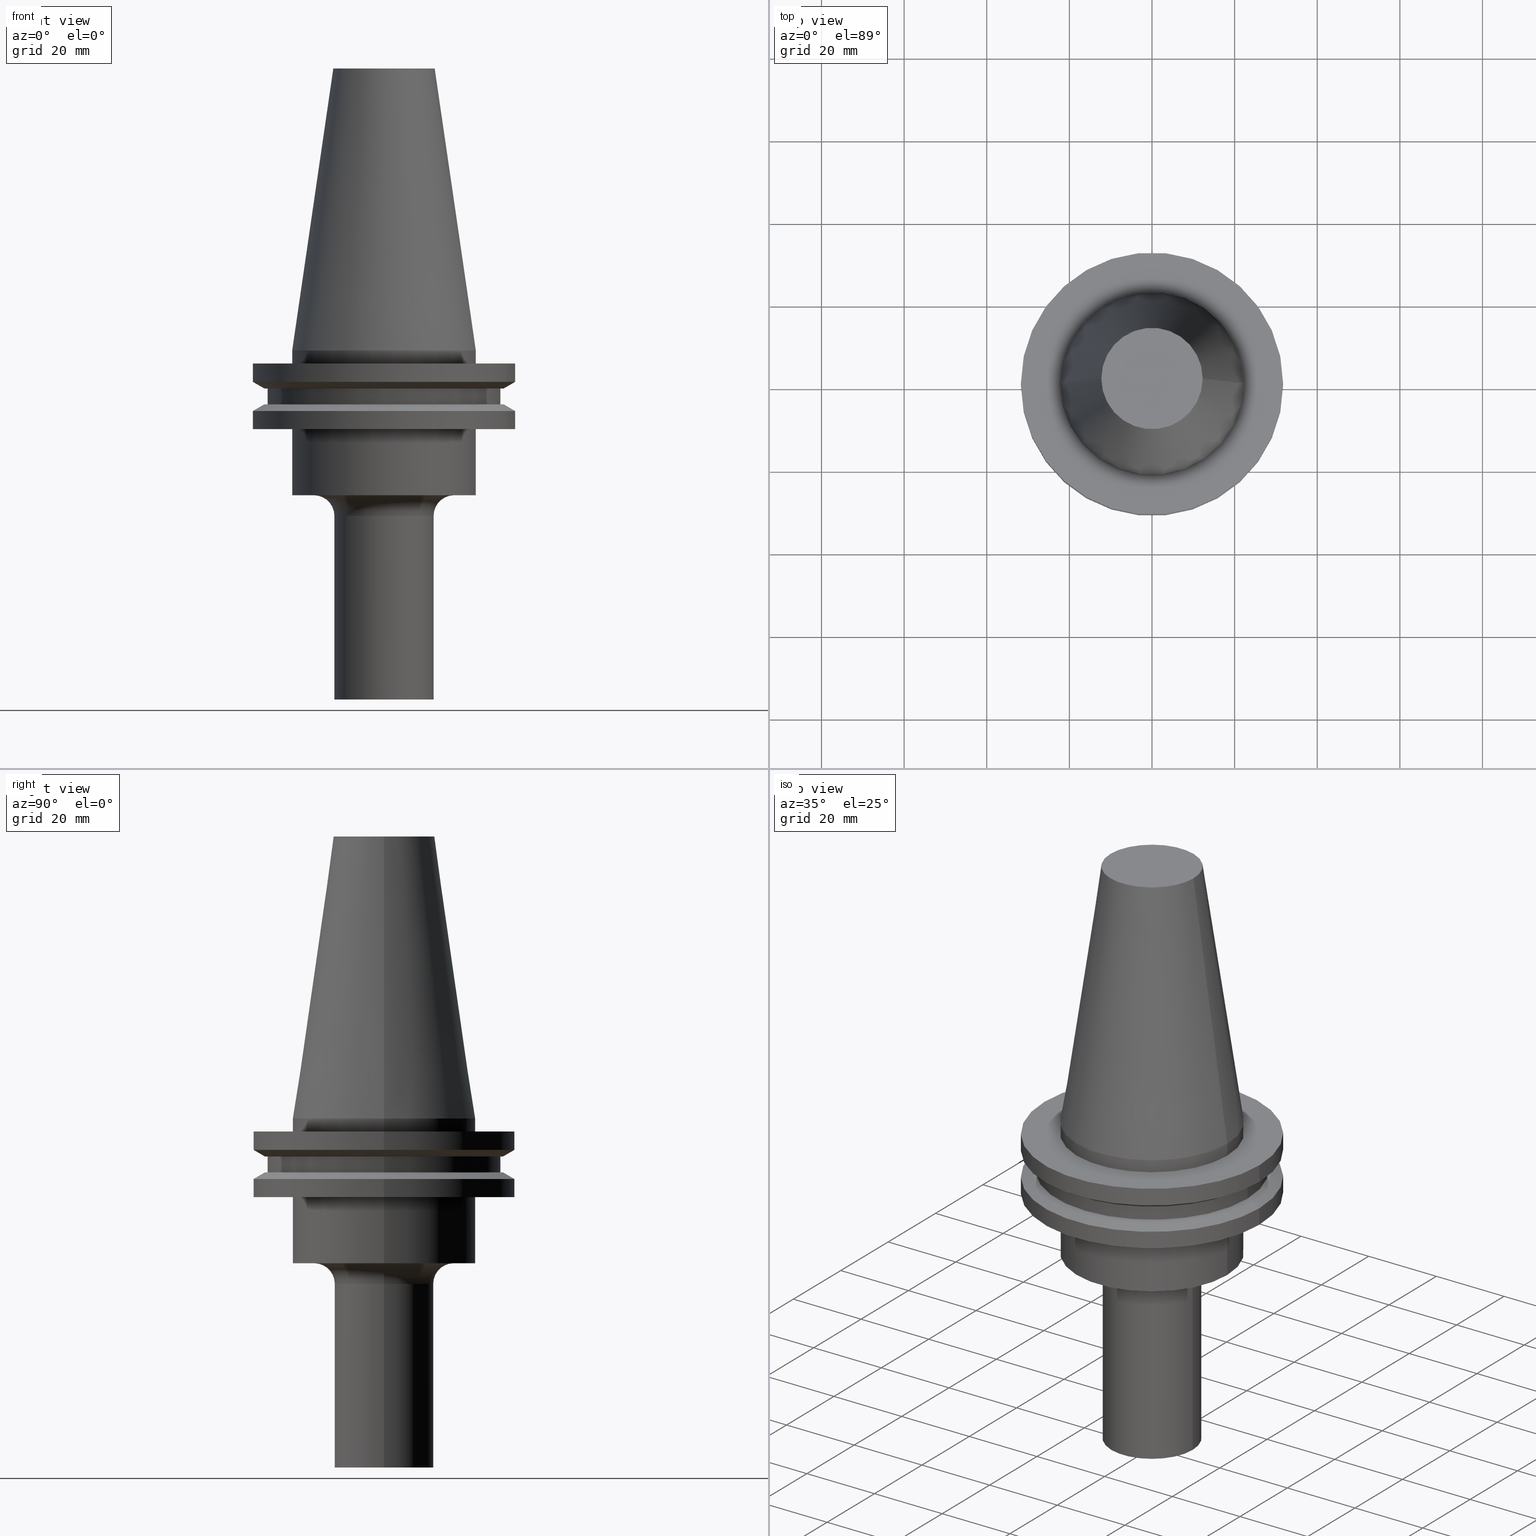
[diagram: canonical four-view strip — front | top / right | iso, engineering-drawing reading convention]
A machine part, canonical four-view strip (front | top / right | iso — engineering-drawing reading convention). The complete STEP part file that produces these views, byte-faithful:
ISO-10303-21;
HEADER;
FILE_DESCRIPTION (( 'STEP AP203' ),
    '1' );
FILE_NAME ('11_326_421.stp',
    '2022-03-07T22:03:03',
    ( '' ),
    ( '' ),
    'SwSTEP 2.0',
    'SolidWorks 2021',
    '' );
FILE_SCHEMA (( 'CONFIG_CONTROL_DESIGN' ));
ENDSEC;

DATA;
#1 = EDGE_LOOP ( 'NONE', ( #113, #151, #72, #214 ) ) ;
#2 = DATE_TIME_ROLE ( 'creation_date' ) ;
#3 = ADVANCED_FACE ( 'NONE', ( #420 ), #192, .T. ) ;
#4 = DIRECTION ( 'NONE',  ( 1.000000000000000000, 0.000000000000000000, 0.000000000000000000 ) ) ;
#5 = AXIS2_PLACEMENT_3D ( 'NONE', #131, #666, #489 ) ;
#6 = EDGE_CURVE ( 'NONE', #467, #290, #358, .T. ) ;
#7 = CARTESIAN_POINT ( 'NONE',  ( 0.000000000000000000, 0.000000000000000000, 0.000000000000000000 ) ) ;
#8 = ORIENTED_EDGE ( 'NONE', *, *, #324, .T. ) ;
#9 = CARTESIAN_POINT ( 'NONE',  ( 0.000000000000000000, 0.000000000000000000, 68.25000000000000000 ) ) ;
#10 = EDGE_LOOP ( 'NONE', ( #356, #107, #241, #227 ) ) ;
#11 = EDGE_CURVE ( 'NONE', #377, #290, #146, .T. ) ;
#12 = PERSON_AND_ORGANIZATION ( #169, #368 ) ;
#13 = VERTEX_POINT ( 'NONE', #388 ) ;
#14 = DIRECTION ( 'NONE',  ( 1.000000000000000000, 0.000000000000000000, 0.000000000000000000 ) ) ;
#15 = SHAPE_DEFINITION_REPRESENTATION ( #189, #515 ) ;
#16 = CARTESIAN_POINT ( 'NONE',  ( 12.00000000000000000, 0.000000000000000000, -84.50000000000000000 ) ) ;
#17 = ORIENTED_EDGE ( 'NONE', *, *, #58, .T. ) ;
#18 = AXIS2_PLACEMENT_3D ( 'NONE', #76, #97, #217 ) ;
#19 = ORIENTED_EDGE ( 'NONE', *, *, #71, .F. ) ;
#20 = CARTESIAN_POINT ( 'NONE',  ( -12.27178102086201150, 0.000000000000000000, 68.25000000000000000 ) ) ;
#21 = CIRCLE ( 'NONE', #63, 12.00000000000000000 ) ;
#22 = CARTESIAN_POINT ( 'NONE',  ( 31.75000000000000000, 0.000000000000000000, -3.174999999999997158 ) ) ;
#23 = FACE_OUTER_BOUND ( 'NONE', #10, .T. ) ;
#24 = EDGE_LOOP ( 'NONE', ( #553, #49, #118, #252 ) ) ;
#25 = DIRECTION ( 'NONE',  ( -0.000000000000000000, -0.000000000000000000, 1.000000000000000000 ) ) ;
#26 = CARTESIAN_POINT ( 'NONE',  ( 0.000000000000000000, 12.00000000000000000, -84.50000000000000000 ) ) ;
#27 = LINE ( 'NONE', #568, #726 ) ;
#28 = CARTESIAN_POINT ( 'NONE',  ( -22.22500000000000142, 2.721777511104992849E-15, -19.04999999999999716 ) ) ;
#29 = CARTESIAN_POINT ( 'NONE',  ( 0.000000000000000000, 0.000000000000000000, 68.25000000000000000 ) ) ;
#30 = CARTESIAN_POINT ( 'NONE',  ( 0.000000000000000000, 0.000000000000000000, 68.25000000000000000 ) ) ;
#31 = ORIENTED_EDGE ( 'NONE', *, *, #45, .T. ) ;
#32 = DIRECTION ( 'NONE',  ( -0.000000000000000000, -0.000000000000000000, 1.000000000000000000 ) ) ;
#33 = AXIS2_PLACEMENT_3D ( 'NONE', #326, #673, #262 ) ;
#34 = CARTESIAN_POINT ( 'NONE',  ( 0.000000000000000000, 0.000000000000000000, -9.205000000000005400 ) ) ;
#35 = DIRECTION ( 'NONE',  ( 1.000000000000000000, 0.000000000000000000, 0.000000000000000000 ) ) ;
#36 = AXIS2_PLACEMENT_3D ( 'NONE', #330, #625, #571 ) ;
#37 = EDGE_CURVE ( 'NONE', #179, #419, #411, .T. ) ;
#38 = AXIS2_PLACEMENT_3D ( 'NONE', #228, #55, #530 ) ;
#39 = DIRECTION ( 'NONE',  ( -1.000000000000000000, 0.000000000000000000, -0.000000000000000000 ) ) ;
#40 = LOCAL_TIME ( 16, 3, 3.000000000000000000, #487 ) ;
#41 = ORIENTED_EDGE ( 'NONE', *, *, #501, .T. ) ;
#42 = FACE_BOUND ( 'NONE', #576, .T. ) ;
#43 = DIRECTION ( 'NONE',  ( 1.000000000000000000, 0.000000000000000000, 0.000000000000000000 ) ) ;
#44 = DIRECTION ( 'NONE',  ( -0.000000000000000000, -0.000000000000000000, 1.000000000000000000 ) ) ;
#45 = EDGE_CURVE ( 'NONE', #529, #347, #27, .T. ) ;
#46 = VERTEX_POINT ( 'NONE', #453 ) ;
#47 = CYLINDRICAL_SURFACE ( 'NONE', #731, 22.22500000000000142 ) ;
#48 = CARTESIAN_POINT ( 'NONE',  ( -31.75000000000000000, 0.000000000000000000, -14.65472339340266572 ) ) ;
#49 = ORIENTED_EDGE ( 'NONE', *, *, #573, .F. ) ;
#50 = CYLINDRICAL_SURFACE ( 'NONE', #361, 22.22500000000000142 ) ;
#51 = DIRECTION ( 'NONE',  ( 1.000000000000000000, 0.000000000000000000, 0.000000000000000000 ) ) ;
#52 = AXIS2_PLACEMENT_3D ( 'NONE', #162, #103, #278 ) ;
#53 = AXIS2_PLACEMENT_3D ( 'NONE', #523, #378, #288 ) ;
#54 = EDGE_LOOP ( 'NONE', ( #73, #503 ) ) ;
#55 = DIRECTION ( 'NONE',  ( -0.000000000000000000, -0.000000000000000000, 1.000000000000000000 ) ) ;
#56 = FACE_OUTER_BOUND ( 'NONE', #551, .T. ) ;
#57 = DIRECTION ( 'NONE',  ( 1.000000000000000000, 0.000000000000000000, 0.000000000000000000 ) ) ;
#58 = EDGE_CURVE ( 'NONE', #609, #311, #340, .T. ) ;
#59 = ORIENTED_EDGE ( 'NONE', *, *, #412, .F. ) ;
#60 = ORIENTED_EDGE ( 'NONE', *, *, #365, .T. ) ;
#61 = EDGE_CURVE ( 'NONE', #522, #300, #635, .T. ) ;
#62 = VECTOR ( 'NONE', #755, 1000.000000000000000 ) ;
#63 = AXIS2_PLACEMENT_3D ( 'NONE', #693, #106, #513 ) ;
#64 = ORIENTED_EDGE ( 'NONE', *, *, #235, .F. ) ;
#65 = PRODUCT ( '11_326_421', '11_326_421', '', ( #185 ) ) ;
#66 = AXIS2_PLACEMENT_3D ( 'NONE', #502, #690, #521 ) ;
#67 = APPROVAL_STATUS ( 'not_yet_approved' ) ;
#68 = AXIS2_PLACEMENT_3D ( 'NONE', #642, #461, #402 ) ;
#69 = AXIS2_PLACEMENT_3D ( 'NONE', #342, #85, #577 ) ;
#70 = LOCAL_TIME ( 16, 3, 3.000000000000000000, #427 ) ;
#71 = EDGE_CURVE ( 'NONE', #463, #377, #496, .T. ) ;
#72 = ORIENTED_EDGE ( 'NONE', *, *, #532, .F. ) ;
#73 = ORIENTED_EDGE ( 'NONE', *, *, #735, .T. ) ;
#74 = CALENDAR_DATE ( 2022, 7, 3 ) ;
#75 = DIRECTION ( 'NONE',  ( -0.000000000000000000, -0.000000000000000000, 1.000000000000000000 ) ) ;
#76 = CARTESIAN_POINT ( 'NONE',  ( 0.000000000000000000, 0.000000000000000000, -3.174999999999997158 ) ) ;
#77 = DIRECTION ( 'NONE',  ( -0.000000000000000000, -0.000000000000000000, 1.000000000000000000 ) ) ;
#78 = DIRECTION ( 'NONE',  ( 1.000000000000000000, 0.000000000000000000, 0.000000000000000000 ) ) ;
#79 = ORIENTED_EDGE ( 'NONE', *, *, #235, .T. ) ;
#80 = CARTESIAN_POINT ( 'NONE',  ( -31.75000000000000000, 3.888253587292846476E-15, -7.605276606597335842 ) ) ;
#81 = CARTESIAN_POINT ( 'NONE',  ( -17.00000000000000000, 2.081899558550500280E-15, -40.04999999999999716 ) ) ;
#82 = DIRECTION ( 'NONE',  ( -1.000000000000000000, 0.000000000000000000, 0.000000000000000000 ) ) ;
#83 = ADVANCED_FACE ( 'NONE', ( #23 ), #682, .T. ) ;
#84 = EDGE_CURVE ( 'NONE', #596, #304, #543, .T. ) ;
#85 = DIRECTION ( 'NONE',  ( -0.000000000000000000, -0.000000000000000000, 1.000000000000000000 ) ) ;
#86 = CYLINDRICAL_SURFACE ( 'NONE', #537, 31.75000000000000000 ) ;
#87 = DIRECTION ( 'NONE',  ( 1.000000000000000000, 0.000000000000000000, 0.000000000000000000 ) ) ;
#88 = ADVANCED_FACE ( 'NONE', ( #678, #204 ), #516, .F. ) ;
#89 = ORIENTED_EDGE ( 'NONE', *, *, #125, .T. ) ;
#90 = DIRECTION ( 'NONE',  ( -0.000000000000000000, -0.000000000000000000, 1.000000000000000000 ) ) ;
#91 = DIRECTION ( 'NONE',  ( -0.000000000000000000, -0.000000000000000000, 1.000000000000000000 ) ) ;
#92 = DIRECTION ( 'NONE',  ( 0.000000000000000000, 0.000000000000000000, -1.000000000000000000 ) ) ;
#93 = ORIENTED_EDGE ( 'NONE', *, *, #45, .F. ) ;
#94 = LINE ( 'NONE', #205, #302 ) ;
#95 = DIRECTION ( 'NONE',  ( -0.000000000000000000, -0.000000000000000000, 1.000000000000000000 ) ) ;
#96 = AXIS2_PLACEMENT_3D ( 'NONE', #265, #325, #452 ) ;
#97 = DIRECTION ( 'NONE',  ( -0.000000000000000000, -0.000000000000000000, 1.000000000000000000 ) ) ;
#98 = EDGE_CURVE ( 'NONE', #569, #13, #774, .T. ) ;
#99 =( GEOMETRIC_REPRESENTATION_CONTEXT ( 3 ) GLOBAL_UNCERTAINTY_ASSIGNED_CONTEXT ( ( #261 ) ) GLOBAL_UNIT_ASSIGNED_CONTEXT ( ( #662, #721, #188 ) ) REPRESENTATION_CONTEXT ( 'NONE', 'WORKASPACE' ) );
#100 = ORIENTED_EDGE ( 'NONE', *, *, #424, .F. ) ;
#101 = CARTESIAN_POINT ( 'NONE',  ( 31.75000000000000000, 0.000000000000000000, -7.605276606597335842 ) ) ;
#102 = CARTESIAN_POINT ( 'NONE',  ( 0.000000000000000000, 0.000000000000000000, -13.05499999999999794 ) ) ;
#103 = DIRECTION ( 'NONE',  ( -0.000000000000000000, -0.000000000000000000, 1.000000000000000000 ) ) ;
#104 = ORIENTED_EDGE ( 'NONE', *, *, #58, .F. ) ;
#105 = FACE_OUTER_BOUND ( 'NONE', #518, .T. ) ;
#106 = DIRECTION ( 'NONE',  ( -0.000000000000000000, -0.000000000000000000, 1.000000000000000000 ) ) ;
#107 = ORIENTED_EDGE ( 'NONE', *, *, #735, .F. ) ;
#108 = ADVANCED_FACE ( 'NONE', ( #618 ), #136, .T. ) ;
#109 = CYLINDRICAL_SURFACE ( 'NONE', #246, 28.17999999999999972 ) ;
#110 = DIRECTION ( 'NONE',  ( -0.000000000000000000, -0.000000000000000000, 1.000000000000000000 ) ) ;
#111 = CIRCLE ( 'NONE', #175, 28.17999999999999972 ) ;
#112 = CIRCLE ( 'NONE', #538, 22.22500000000000142 ) ;
#113 = ORIENTED_EDGE ( 'NONE', *, *, #117, .T. ) ;
#114 = DIRECTION ( 'NONE',  ( -0.000000000000000000, -0.000000000000000000, 1.000000000000000000 ) ) ;
#115 = CARTESIAN_POINT ( 'NONE',  ( 12.00000000000000000, 0.000000000000000000, -40.04999999999999716 ) ) ;
#116 = ORIENTED_EDGE ( 'NONE', *, *, #629, .T. ) ;
#117 = EDGE_CURVE ( 'NONE', #377, #347, #158, .T. ) ;
#118 = ORIENTED_EDGE ( 'NONE', *, *, #517, .T. ) ;
#119 = EDGE_CURVE ( 'NONE', #198, #609, #111, .T. ) ;
#120 = VECTOR ( 'NONE', #472, 1000.000000000000000 ) ;
#121 = ORIENTED_EDGE ( 'NONE', *, *, #365, .F. ) ;
#122 = DATE_AND_TIME ( #481, #129 ) ;
#123 = CARTESIAN_POINT ( 'NONE',  ( 17.00000000000000000, 0.000000000000000000, -35.04999999999999716 ) ) ;
#124 = PERSON_AND_ORGANIZATION_ROLE ( 'design_owner' ) ;
#125 = EDGE_CURVE ( 'NONE', #222, #722, #631, .T. ) ;
#126 = APPLICATION_PROTOCOL_DEFINITION ( 'international standard', 'config_control_design', 1994, #279 ) ;
#127 = AXIS2_PLACEMENT_3D ( 'NONE', #81, #514, #741 ) ;
#128 = VECTOR ( 'NONE', #512, 999.9999999999998863 ) ;
#129 = LOCAL_TIME ( 16, 3, 3.000000000000000000, #661 ) ;
#130 = COORDINATED_UNIVERSAL_TIME_OFFSET ( 6, 0, .BEHIND. ) ;
#131 = CARTESIAN_POINT ( 'NONE',  ( 0.000000000000000000, 0.000000000000000000, -19.04999999999999716 ) ) ;
#132 = EDGE_LOOP ( 'NONE', ( #316, #687, #657, #121 ) ) ;
#133 = EDGE_CURVE ( 'NONE', #419, #569, #281, .T. ) ;
#134 = SECURITY_CLASSIFICATION_LEVEL ( 'unclassified' ) ;
#135 = DIRECTION ( 'NONE',  ( 0.1443082272672999711, 1.767266086135276757E-17, -0.9895327864921755756 ) ) ;
#136 = CYLINDRICAL_SURFACE ( 'NONE', #599, 31.75000000000000000 ) ;
#137 = VERTEX_POINT ( 'NONE', #694 ) ;
#138 = DIRECTION ( 'NONE',  ( 1.000000000000000000, 0.000000000000000000, 0.000000000000000000 ) ) ;
#139 = FACE_BOUND ( 'NONE', #669, .T. ) ;
#140 = DIRECTION ( 'NONE',  ( 1.000000000000000000, 0.000000000000000000, 0.000000000000000000 ) ) ;
#141 = CC_DESIGN_DATE_AND_TIME_ASSIGNMENT ( #193, #2, ( #258 ) ) ;
#142 = VERTEX_POINT ( 'NONE', #559 ) ;
#143 = DIRECTION ( 'NONE',  ( -0.000000000000000000, -0.000000000000000000, 1.000000000000000000 ) ) ;
#144 = AXIS2_PLACEMENT_3D ( 'NONE', #570, #32, #762 ) ;
#145 = FACE_OUTER_BOUND ( 'NONE', #486, .T. ) ;
#146 = LINE ( 'NONE', #684, #244 ) ;
#147 = ORIENTED_EDGE ( 'NONE', *, *, #203, .T. ) ;
#148 = LINE ( 'NONE', #633, #660 ) ;
#149 = PLANE ( 'NONE',  #574 ) ;
#150 = DIRECTION ( 'NONE',  ( -0.000000000000000000, -0.000000000000000000, 1.000000000000000000 ) ) ;
#151 = ORIENTED_EDGE ( 'NONE', *, *, #403, .T. ) ;
#152 = FACE_OUTER_BOUND ( 'NONE', #647, .T. ) ;
#153 = CYLINDRICAL_SURFACE ( 'NONE', #464, 22.22500000000000142 ) ;
#154 = EDGE_CURVE ( 'NONE', #696, #137, #272, .T. ) ;
#155 = CARTESIAN_POINT ( 'NONE',  ( 0.000000000000000000, 0.000000000000000000, -14.65472339340266572 ) ) ;
#156 = EDGE_LOOP ( 'NONE', ( #344, #327, #263, #373 ) ) ;
#157 = CARTESIAN_POINT ( 'NONE',  ( 22.22500000000000142, 0.000000000000000000, 68.25000000000000000 ) ) ;
#158 = CIRCLE ( 'NONE', #421, 31.75000000000000000 ) ;
#159 = CARTESIAN_POINT ( 'NONE',  ( 0.000000000000000000, 22.22500000000000142, -35.04999999999999716 ) ) ;
#160 = AXIS2_PLACEMENT_3D ( 'NONE', #26, #254, #202 ) ;
#161 = CIRCLE ( 'NONE', #700, 4.999999999999997335 ) ;
#162 = CARTESIAN_POINT ( 'NONE',  ( 0.000000000000000000, 0.000000000000000000, -19.04999999999999716 ) ) ;
#163 = ORIENTED_EDGE ( 'NONE', *, *, #470, .F. ) ;
#164 = CARTESIAN_POINT ( 'NONE',  ( 28.17999999999999972, 0.000000000000000000, 68.25000000000000000 ) ) ;
#165 = CARTESIAN_POINT ( 'NONE',  ( 0.000000000000000000, 0.000000000000000000, -19.04999999999999716 ) ) ;
#166 = EDGE_CURVE ( 'NONE', #142, #137, #636, .T. ) ;
#167 = VERTEX_POINT ( 'NONE', #380 ) ;
#168 = CARTESIAN_POINT ( 'NONE',  ( 0.000000000000000000, 0.000000000000000000, 68.25000000000000000 ) ) ;
#169 = PERSON ( 'UNSPECIFIED', 'UNSPECIFIED', 'UNSPECIFIED', ('UNSPECIFIED'), ('UNSPECIFIED'), ('UNSPECIFIED') ) ;
#170 = DIRECTION ( 'NONE',  ( 1.000000000000000000, 0.000000000000000000, 0.000000000000000000 ) ) ;
#171 = CC_DESIGN_DATE_AND_TIME_ASSIGNMENT ( #253, #374, ( #238 ) ) ;
#172 = ORIENTED_EDGE ( 'NONE', *, *, #428, .F. ) ;
#173 = DIRECTION ( 'NONE',  ( 1.000000000000000000, 0.000000000000000000, 0.000000000000000000 ) ) ;
#174 = PLANE ( 'NONE',  #195 ) ;
#175 = AXIS2_PLACEMENT_3D ( 'NONE', #622, #457, #78 ) ;
#176 = CIRCLE ( 'NONE', #184, 12.27178102086201150 ) ;
#177 = EDGE_CURVE ( 'NONE', #609, #198, #360, .T. ) ;
#178 = ORIENTED_EDGE ( 'NONE', *, *, #6, .T. ) ;
#179 = VERTEX_POINT ( 'NONE', #699 ) ;
#180 = EDGE_CURVE ( 'NONE', #341, #142, #637, .T. ) ;
#181 = CC_DESIGN_PERSON_AND_ORGANIZATION_ASSIGNMENT ( #723, #190, ( #238 ) ) ;
#182 = ORIENTED_EDGE ( 'NONE', *, *, #71, .T. ) ;
#183 = AXIS2_PLACEMENT_3D ( 'NONE', #317, #379, #445 ) ;
#184 = AXIS2_PLACEMENT_3D ( 'NONE', #296, #405, #465 ) ;
#185 = MECHANICAL_CONTEXT ( 'NONE', #279, 'mechanical' ) ;
#186 = ADVANCED_FACE ( 'NONE', ( #211 ), #555, .F. ) ;
#187 = EDGE_CURVE ( 'NONE', #142, #341, #475, .T. ) ;
#188 =( NAMED_UNIT ( * ) SI_UNIT ( $, .STERADIAN. ) SOLID_ANGLE_UNIT ( ) );
#189 = PRODUCT_DEFINITION_SHAPE ( 'NONE', 'NONE',  #258 ) ;
#190 = PERSON_AND_ORGANIZATION_ROLE ( 'classification_officer' ) ;
#191 = ORIENTED_EDGE ( 'NONE', *, *, #705, .F. ) ;
#192 = CONICAL_SURFACE ( 'NONE', #586, 22.22500000000000142, 0.1448138465474119174 ) ;
#193 = DATE_AND_TIME ( #540, #40 ) ;
#194 = EDGE_CURVE ( 'NONE', #522, #167, #508, .T. ) ;
#195 = AXIS2_PLACEMENT_3D ( 'NONE', #159, #409, #582 ) ;
#196 = LOCAL_TIME ( 16, 3, 3.000000000000000000, #670 ) ;
#197 = CARTESIAN_POINT ( 'NONE',  ( 0.000000000000000000, 0.000000000000000000, -40.04999999999999716 ) ) ;
#198 = VERTEX_POINT ( 'NONE', #371 ) ;
#199 = EDGE_LOOP ( 'NONE', ( #104, #443, #397, #100 ) ) ;
#200 = ADVANCED_FACE ( 'NONE', ( #321 ), #314, .T. ) ;
#201 = CARTESIAN_POINT ( 'NONE',  ( 0.000000000000000000, 0.000000000000000000, -14.65472339340266572 ) ) ;
#202 = DIRECTION ( 'NONE',  ( 1.000000000000000000, 0.000000000000000000, 0.000000000000000000 ) ) ;
#203 = EDGE_CURVE ( 'NONE', #347, #377, #765, .T. ) ;
#204 = FACE_OUTER_BOUND ( 'NONE', #54, .T. ) ;
#205 = CARTESIAN_POINT ( 'NONE',  ( 31.75000000000000000, 0.000000000000000000, 68.25000000000000000 ) ) ;
#206 = DIRECTION ( 'NONE',  ( -0.000000000000000000, -0.000000000000000000, 1.000000000000000000 ) ) ;
#207 = CARTESIAN_POINT ( 'NONE',  ( 0.000000000000000000, 28.17999999999999972, -13.05499999999999794 ) ) ;
#208 = AXIS2_PLACEMENT_3D ( 'NONE', #29, #91, #681 ) ;
#209 = CYLINDRICAL_SURFACE ( 'NONE', #607, 12.00000000000000000 ) ;
#210 = CIRCLE ( 'NONE', #274, 22.22500000000000142 ) ;
#211 = FACE_OUTER_BOUND ( 'NONE', #535, .T. ) ;
#212 = DIRECTION ( 'NONE',  ( -0.000000000000000000, -0.000000000000000000, 1.000000000000000000 ) ) ;
#213 = ADVANCED_FACE ( 'NONE', ( #613, #139 ), #149, .F. ) ;
#214 = ORIENTED_EDGE ( 'NONE', *, *, #11, .F. ) ;
#215 = CARTESIAN_POINT ( 'NONE',  ( 0.000000000000000000, 0.000000000000000000, 68.25000000000000000 ) ) ;
#216 = DIRECTION ( 'NONE',  ( -0.8660254037844387076, 0.000000000000000000, -0.4999999999999998890 ) ) ;
#217 = DIRECTION ( 'NONE',  ( 1.000000000000000000, 0.000000000000000000, 0.000000000000000000 ) ) ;
#218 = EDGE_LOOP ( 'NONE', ( #480, #650, #59, #565 ) ) ;
#219 = CARTESIAN_POINT ( 'NONE',  ( 22.22500000000000142, 0.000000000000000000, -3.174999999999997158 ) ) ;
#220 = FACE_OUTER_BOUND ( 'NONE', #557, .T. ) ;
#221 = CARTESIAN_POINT ( 'NONE',  ( 0.000000000000000000, 0.000000000000000000, 0.000000000000000000 ) ) ;
#222 = VERTEX_POINT ( 'NONE', #16 ) ;
#223 = DIRECTION ( 'NONE',  ( 0.000000000000000000, -1.000000000000000000, 0.000000000000000000 ) ) ;
#224 = DIRECTION ( 'NONE',  ( -0.000000000000000000, -0.000000000000000000, 1.000000000000000000 ) ) ;
#225 = CONICAL_SURFACE ( 'NONE', #382, 31.75000000000000000, 1.047197551196597853 ) ;
#226 = VECTOR ( 'NONE', #395, 1000.000000000000000 ) ;
#227 = ORIENTED_EDGE ( 'NONE', *, *, #381, .T. ) ;
#228 = CARTESIAN_POINT ( 'NONE',  ( 0.000000000000000000, 0.000000000000000000, 68.25000000000000000 ) ) ;
#229 = CARTESIAN_POINT ( 'NONE',  ( 31.75000000000000000, 0.000000000000000000, -14.65472339340266572 ) ) ;
#230 = DIRECTION ( 'NONE',  ( 1.000000000000000000, 0.000000000000000000, 0.000000000000000000 ) ) ;
#231 = ADVANCED_FACE ( 'NONE', ( #441 ), #431, .T. ) ;
#232 = ORIENTED_EDGE ( 'NONE', *, *, #760, .F. ) ;
#233 = LINE ( 'NONE', #164, #120 ) ;
#234 = DIRECTION ( 'NONE',  ( 0.000000000000000000, 0.000000000000000000, -1.000000000000000000 ) ) ;
#235 = EDGE_CURVE ( 'NONE', #167, #722, #600, .T. ) ;
#236 = ORIENTED_EDGE ( 'NONE', *, *, #98, .F. ) ;
#237 = AXIS2_PLACEMENT_3D ( 'NONE', #708, #224, #649 ) ;
#238 = SECURITY_CLASSIFICATION ( '', '', #134 ) ;
#239 = ORIENTED_EDGE ( 'NONE', *, *, #760, .T. ) ;
#240 = ADVANCED_FACE ( 'NONE', ( #260 ), #293, .T. ) ;
#241 = ORIENTED_EDGE ( 'NONE', *, *, #704, .T. ) ;
#242 = APPROVAL_ROLE ( '' ) ;
#243 = EDGE_CURVE ( 'NONE', #596, #569, #563, .T. ) ;
#244 = VECTOR ( 'NONE', #285, 1000.000000000000000 ) ;
#245 = AXIS2_PLACEMENT_3D ( 'NONE', #437, #689, #737 ) ;
#246 = AXIS2_PLACEMENT_3D ( 'NONE', #710, #114, #173 ) ;
#247 = APPROVAL_ROLE ( '' ) ;
#248 = ORIENTED_EDGE ( 'NONE', *, *, #194, .F. ) ;
#249 = PERSON_AND_ORGANIZATION ( #169, #368 ) ;
#250 = CARTESIAN_POINT ( 'NONE',  ( 0.000000000000000000, 0.000000000000000000, 0.000000000000000000 ) ) ;
#251 = PERSON_AND_ORGANIZATION_ROLE ( 'creator' ) ;
#252 = ORIENTED_EDGE ( 'NONE', *, *, #611, .T. ) ;
#253 = DATE_AND_TIME ( #74, #196 ) ;
#254 = DIRECTION ( 'NONE',  ( 0.000000000000000000, -0.000000000000000000, 1.000000000000000000 ) ) ;
#255 = VERTEX_POINT ( 'NONE', #567 ) ;
#256 = AXIS2_PLACEMENT_3D ( 'NONE', #268, #504, #455 ) ;
#257 = ORIENTED_EDGE ( 'NONE', *, *, #61, .T. ) ;
#258 = PRODUCT_DEFINITION ( 'UNKNOWN', '', #477, #738 ) ;
#259 = DIRECTION ( 'NONE',  ( -0.000000000000000000, -0.000000000000000000, 1.000000000000000000 ) ) ;
#260 = FACE_OUTER_BOUND ( 'NONE', #362, .T. ) ;
#261 = UNCERTAINTY_MEASURE_WITH_UNIT (LENGTH_MEASURE( 1.000000000000000082E-05 ), #662, 'distance_accuracy_value', 'NONE');
#262 = DIRECTION ( 'NONE',  ( 1.000000000000000000, 0.000000000000000000, 0.000000000000000000 ) ) ;
#263 = ORIENTED_EDGE ( 'NONE', *, *, #154, .T. ) ;
#264 = DIRECTION ( 'NONE',  ( 1.000000000000000000, 0.000000000000000000, 0.000000000000000000 ) ) ;
#265 = CARTESIAN_POINT ( 'NONE',  ( 0.000000000000000000, 0.000000000000000000, 0.000000000000000000 ) ) ;
#266 = CARTESIAN_POINT ( 'NONE',  ( 0.000000000000000000, 0.000000000000000000, -14.65472339340266572 ) ) ;
#267 = ORIENTED_EDGE ( 'NONE', *, *, #611, .F. ) ;
#268 = CARTESIAN_POINT ( 'NONE',  ( 0.000000000000000000, 0.000000000000000000, -9.204999999999991189 ) ) ;
#269 = DIRECTION ( 'NONE',  ( 1.000000000000000000, 0.000000000000000000, 0.000000000000000000 ) ) ;
#270 = DIRECTION ( 'NONE',  ( -0.000000000000000000, -0.000000000000000000, 1.000000000000000000 ) ) ;
#271 = EDGE_CURVE ( 'NONE', #643, #222, #729, .T. ) ;
#272 = CIRCLE ( 'NONE', #301, 31.75000000000000000 ) ;
#273 = ORIENTED_EDGE ( 'NONE', *, *, #84, .T. ) ;
#274 = AXIS2_PLACEMENT_3D ( 'NONE', #386, #757, #675 ) ;
#275 = LINE ( 'NONE', #566, #128 ) ;
#276 = FACE_BOUND ( 'NONE', #588, .T. ) ;
#277 = AXIS2_PLACEMENT_3D ( 'NONE', #7, #542, #4 ) ;
#278 = DIRECTION ( 'NONE',  ( 1.000000000000000000, 0.000000000000000000, 0.000000000000000000 ) ) ;
#279 = APPLICATION_CONTEXT ( 'configuration controlled 3d designs of mechanical parts and assemblies' ) ;
#280 = EDGE_CURVE ( 'NONE', #474, #369, #746, .T. ) ;
#281 = LINE ( 'NONE', #442, #333 ) ;
#282 = VERTEX_POINT ( 'NONE', #676 ) ;
#283 = CARTESIAN_POINT ( 'NONE',  ( 28.97919780457007732, 0.000000000000000000, -9.205000000000005400 ) ) ;
#284 = DIRECTION ( 'NONE',  ( 1.000000000000000000, 0.000000000000000000, 0.000000000000000000 ) ) ;
#285 = DIRECTION ( 'NONE',  ( -0.000000000000000000, -0.000000000000000000, 1.000000000000000000 ) ) ;
#286 = ADVANCED_FACE ( 'NONE', ( #621 ), #558, .T. ) ;
#287 = EDGE_LOOP ( 'NONE', ( #770, #17, #232, #525 ) ) ;
#288 = DIRECTION ( 'NONE',  ( 1.000000000000000000, 0.000000000000000000, 0.000000000000000000 ) ) ;
#289 = DIRECTION ( 'NONE',  ( 1.000000000000000000, 0.000000000000000000, 0.000000000000000000 ) ) ;
#290 = VERTEX_POINT ( 'NONE', #22 ) ;
#291 = DIRECTION ( 'NONE',  ( -0.000000000000000000, -0.000000000000000000, 1.000000000000000000 ) ) ;
#292 = ADVANCED_FACE ( 'NONE', ( #145 ), #366, .T. ) ;
#293 = CONICAL_SURFACE ( 'NONE', #183, 28.97919780457007732, 1.047197551196598297 ) ;
#294 = CONICAL_SURFACE ( 'NONE', #775, 22.22500000000000142, 0.1448138465474119174 ) ;
#295 = ORIENTED_EDGE ( 'NONE', *, *, #11, .T. ) ;
#296 = CARTESIAN_POINT ( 'NONE',  ( 0.000000000000000000, 0.000000000000000000, 68.25000000000000000 ) ) ;
#297 = CARTESIAN_POINT ( 'NONE',  ( 0.000000000000000000, 12.27178102086201150, 68.25000000000000000 ) ) ;
#298 = ORIENTED_EDGE ( 'NONE', *, *, #194, .T. ) ;
#299 = ADVANCED_FACE ( 'NONE', ( #387 ), #86, .T. ) ;
#300 = VERTEX_POINT ( 'NONE', #123 ) ;
#301 = AXIS2_PLACEMENT_3D ( 'NONE', #155, #396, #140 ) ;
#302 = VECTOR ( 'NONE', #25, 1000.000000000000000 ) ;
#303 = CC_DESIGN_APPROVAL ( #604, ( #238 ) ) ;
#304 = VERTEX_POINT ( 'NONE', #20 ) ;
#305 = CYLINDRICAL_SURFACE ( 'NONE', #462, 22.22500000000000142 ) ;
#306 = CC_DESIGN_PERSON_AND_ORGANIZATION_ASSIGNMENT ( #249, #485, ( #477 ) ) ;
#307 = AXIS2_PLACEMENT_3D ( 'NONE', #348, #768, #590 ) ;
#308 = DIRECTION ( 'NONE',  ( 1.000000000000000000, 0.000000000000000000, 0.000000000000000000 ) ) ;
#309 = ORIENTED_EDGE ( 'NONE', *, *, #243, .T. ) ;
#310 = DATE_AND_TIME ( #725, #70 ) ;
#311 = VERTEX_POINT ( 'NONE', #429 ) ;
#312 = FACE_OUTER_BOUND ( 'NONE', #539, .T. ) ;
#313 = APPROVAL_ROLE ( '' ) ;
#314 = CYLINDRICAL_SURFACE ( 'NONE', #96, 12.00000000000000000 ) ;
#315 = ORIENTED_EDGE ( 'NONE', *, *, #180, .F. ) ;
#316 = ORIENTED_EDGE ( 'NONE', *, *, #180, .T. ) ;
#317 = CARTESIAN_POINT ( 'NONE',  ( 0.000000000000000000, 0.000000000000000000, -9.205000000000005400 ) ) ;
#318 = DIRECTION ( 'NONE',  ( -0.000000000000000000, -0.000000000000000000, 1.000000000000000000 ) ) ;
#319 = ORIENTED_EDGE ( 'NONE', *, *, #119, .F. ) ;
#320 = DIRECTION ( 'NONE',  ( -1.000000000000000000, 0.000000000000000000, 0.000000000000000000 ) ) ;
#321 = FACE_OUTER_BOUND ( 'NONE', #484, .T. ) ;
#322 = CARTESIAN_POINT ( 'NONE',  ( -28.17999999999999972, 3.451054679997241634E-15, 68.25000000000000000 ) ) ;
#323 = FACE_OUTER_BOUND ( 'NONE', #709, .T. ) ;
#324 = EDGE_CURVE ( 'NONE', #419, #179, #683, .T. ) ;
#325 = DIRECTION ( 'NONE',  ( -0.000000000000000000, -0.000000000000000000, 1.000000000000000000 ) ) ;
#326 = CARTESIAN_POINT ( 'NONE',  ( 0.000000000000000000, 0.000000000000000000, -3.174999999999997158 ) ) ;
#327 = ORIENTED_EDGE ( 'NONE', *, *, #686, .T. ) ;
#328 = LINE ( 'NONE', #157, #493 ) ;
#329 = ADVANCED_FACE ( 'NONE', ( #312 ), #305, .T. ) ;
#330 = CARTESIAN_POINT ( 'NONE',  ( 0.000000000000000000, 0.000000000000000000, -9.205000000000005400 ) ) ;
#331 = CARTESIAN_POINT ( 'NONE',  ( 12.00000000000000000, 0.000000000000000000, 0.000000000000000000 ) ) ;
#332 = AXIS2_PLACEMENT_3D ( 'NONE', #207, #92, #39 ) ;
#333 = VECTOR ( 'NONE', #318, 1000.000000000000000 ) ;
#334 = EDGE_LOOP ( 'NONE', ( #315, #674 ) ) ;
#335 = AXIS2_PLACEMENT_3D ( 'NONE', #473, #460, #170 ) ;
#336 = CARTESIAN_POINT ( 'NONE',  ( -28.97919780457007732, 3.718590885307660666E-15, -9.205000000000005400 ) ) ;
#337 = FACE_OUTER_BOUND ( 'NONE', #438, .T. ) ;
#338 = APPROVAL_PERSON_ORGANIZATION ( #605, #547, #247 ) ;
#339 = ADVANCED_FACE ( 'NONE', ( #736 ), #225, .T. ) ;
#340 = LINE ( 'NONE', #322, #62 ) ;
#341 = VERTEX_POINT ( 'NONE', #688 ) ;
#342 = CARTESIAN_POINT ( 'NONE',  ( 0.000000000000000000, 0.000000000000000000, -35.04999999999999716 ) ) ;
#343 = DIRECTION ( 'NONE',  ( -0.000000000000000000, -0.000000000000000000, 1.000000000000000000 ) ) ;
#344 = ORIENTED_EDGE ( 'NONE', *, *, #597, .F. ) ;
#345 = FACE_OUTER_BOUND ( 'NONE', #511, .T. ) ;
#346 = PLANE ( 'NONE',  #608 ) ;
#347 = VERTEX_POINT ( 'NONE', #80 ) ;
#348 = CARTESIAN_POINT ( 'NONE',  ( 0.000000000000000000, 0.000000000000000000, -3.174999999999997158 ) ) ;
#349 = LINE ( 'NONE', #406, #226 ) ;
#350 = CARTESIAN_POINT ( 'NONE',  ( 0.000000000000000000, 0.000000000000000000, 0.000000000000000000 ) ) ;
#351 = CIRCLE ( 'NONE', #237, 28.97919780457007732 ) ;
#352 = ORIENTED_EDGE ( 'NONE', *, *, #629, .F. ) ;
#353 = CARTESIAN_POINT ( 'NONE',  ( 0.000000000000000000, 0.000000000000000000, -13.05499999999999794 ) ) ;
#354 = CARTESIAN_POINT ( 'NONE',  ( 0.000000000000000000, 0.000000000000000000, -40.04999999999999716 ) ) ;
#355 = ADVANCED_FACE ( 'NONE', ( #152 ), #209, .T. ) ;
#356 = ORIENTED_EDGE ( 'NONE', *, *, #686, .F. ) ;
#357 = ORIENTED_EDGE ( 'NONE', *, *, #37, .T. ) ;
#358 = CIRCLE ( 'NONE', #18, 31.75000000000000000 ) ;
#359 = DIRECTION ( 'NONE',  ( -0.000000000000000000, -0.000000000000000000, 1.000000000000000000 ) ) ;
#360 = CIRCLE ( 'NONE', #68, 28.17999999999999972 ) ;
#361 = AXIS2_PLACEMENT_3D ( 'NONE', #168, #408, #230 ) ;
#362 = EDGE_LOOP ( 'NONE', ( #116, #31, #615, #19 ) ) ;
#363 = APPROVAL_DATE_TIME ( #122, #743 ) ;
#364 = ADVANCED_FACE ( 'NONE', ( #697, #42 ), #519, .F. ) ;
#365 = EDGE_CURVE ( 'NONE', #341, #696, #94, .T. ) ;
#366 = CONICAL_SURFACE ( 'NONE', #36, 28.97919780457007732, 1.047197551196598297 ) ;
#367 = CIRCLE ( 'NONE', #69, 22.22500000000000142 ) ;
#368 = ORGANIZATION ( 'UNSPECIFIED', 'UNSPECIFIED', '' ) ;
#369 = VERTEX_POINT ( 'NONE', #28 ) ;
#370 = CALENDAR_DATE ( 2022, 7, 3 ) ;
#371 = CARTESIAN_POINT ( 'NONE',  ( 28.17999999999999972, 0.000000000000000000, -13.05499999999999794 ) ) ;
#372 = CC_DESIGN_PERSON_AND_ORGANIZATION_ASSIGNMENT ( #12, #251, ( #258 ) ) ;
#373 = ORIENTED_EDGE ( 'NONE', *, *, #704, .F. ) ;
#374 = DATE_TIME_ROLE ( 'classification_date' ) ;
#375 = CARTESIAN_POINT ( 'NONE',  ( 0.000000000000000000, 0.000000000000000000, -84.50000000000000000 ) ) ;
#376 = CARTESIAN_POINT ( 'NONE',  ( 28.97919780457007732, 0.000000000000000000, -9.205000000000005400 ) ) ;
#377 = VERTEX_POINT ( 'NONE', #101 ) ;
#378 = DIRECTION ( 'NONE',  ( 0.000000000000000000, -0.000000000000000000, 1.000000000000000000 ) ) ;
#379 = DIRECTION ( 'NONE',  ( -0.000000000000000000, -0.000000000000000000, 1.000000000000000000 ) ) ;
#380 = CARTESIAN_POINT ( 'NONE',  ( -12.00000000000000000, 1.469576158976823947E-15, -40.04999999999999716 ) ) ;
#381 = EDGE_CURVE ( 'NONE', #137, #696, #651, .T. ) ;
#382 = AXIS2_PLACEMENT_3D ( 'NONE', #201, #390, #320 ) ;
#383 = PRODUCT_RELATED_PRODUCT_CATEGORY ( 'detail', '', ( #65 ) ) ;
#384 = AXIS2_PLACEMENT_3D ( 'NONE', #165, #110, #284 ) ;
#385 = ORIENTED_EDGE ( 'NONE', *, *, #187, .T. ) ;
#386 = CARTESIAN_POINT ( 'NONE',  ( 0.000000000000000000, 0.000000000000000000, -19.04999999999999716 ) ) ;
#387 = FACE_OUTER_BOUND ( 'NONE', #132, .T. ) ;
#388 = CARTESIAN_POINT ( 'NONE',  ( -22.22500000000000142, 0.000000000000000000, 0.000000000000000000 ) ) ;
#389 = ORIENTED_EDGE ( 'NONE', *, *, #133, .T. ) ;
#390 = DIRECTION ( 'NONE',  ( 0.000000000000000000, 0.000000000000000000, -1.000000000000000000 ) ) ;
#391 = CARTESIAN_POINT ( 'NONE',  ( 0.000000000000000000, 0.000000000000000000, 68.25000000000000000 ) ) ;
#392 = DIRECTION ( 'NONE',  ( 1.000000000000000000, 0.000000000000000000, 0.000000000000000000 ) ) ;
#393 = ORIENTED_EDGE ( 'NONE', *, *, #271, .F. ) ;
#394 = CARTESIAN_POINT ( 'NONE',  ( -17.00000000000000000, 2.081899558550500280E-15, -35.04999999999999716 ) ) ;
#395 = DIRECTION ( 'NONE',  ( 0.8660254037844387076, 1.060575238724906915E-16, -0.4999999999999998890 ) ) ;
#396 = DIRECTION ( 'NONE',  ( -0.000000000000000000, -0.000000000000000000, 1.000000000000000000 ) ) ;
#397 = ORIENTED_EDGE ( 'NONE', *, *, #541, .T. ) ;
#398 = CIRCLE ( 'NONE', #685, 28.97919780457007732 ) ;
#399 = DIRECTION ( 'NONE',  ( -0.000000000000000000, -0.000000000000000000, 1.000000000000000000 ) ) ;
#400 = CARTESIAN_POINT ( 'NONE',  ( 0.000000000000000000, 0.000000000000000000, 68.25000000000000000 ) ) ;
#401 = CC_DESIGN_SECURITY_CLASSIFICATION ( #238, ( #477 ) ) ;
#402 = DIRECTION ( 'NONE',  ( 1.000000000000000000, 0.000000000000000000, 0.000000000000000000 ) ) ;
#403 = EDGE_CURVE ( 'NONE', #347, #467, #148, .T. ) ;
#404 = VERTEX_POINT ( 'NONE', #440 ) ;
#405 = DIRECTION ( 'NONE',  ( -0.000000000000000000, -0.000000000000000000, 1.000000000000000000 ) ) ;
#406 = CARTESIAN_POINT ( 'NONE',  ( 31.75000000000000000, 3.888253587292846476E-15, -14.65472339340266572 ) ) ;
#407 = ORIENTED_EDGE ( 'NONE', *, *, #517, .F. ) ;
#408 = DIRECTION ( 'NONE',  ( -0.000000000000000000, -0.000000000000000000, 1.000000000000000000 ) ) ;
#409 = DIRECTION ( 'NONE',  ( 0.000000000000000000, -0.000000000000000000, 1.000000000000000000 ) ) ;
#410 = EDGE_LOOP ( 'NONE', ( #319, #691 ) ) ;
#411 = CIRCLE ( 'NONE', #33, 22.22500000000000142 ) ;
#412 = EDGE_CURVE ( 'NONE', #255, #369, #210, .T. ) ;
#413 = CARTESIAN_POINT ( 'NONE',  ( 22.22500000000000142, 2.721777511104992849E-15, 0.000000000000000000 ) ) ;
#414 = VECTOR ( 'NONE', #135, 999.9999999999998863 ) ;
#415 = DIRECTION ( 'NONE',  ( -1.000000000000000000, 0.000000000000000000, -0.000000000000000000 ) ) ;
#416 = AXIS2_PLACEMENT_3D ( 'NONE', #102, #466, #758 ) ;
#417 = TOROIDAL_SURFACE ( 'NONE', #748, 17.00000000000000000, 4.999999999999999112 ) ;
#418 = ORIENTED_EDGE ( 'NONE', *, *, #271, .T. ) ;
#419 = VERTEX_POINT ( 'NONE', #219 ) ;
#420 = FACE_OUTER_BOUND ( 'NONE', #655, .T. ) ;
#421 = AXIS2_PLACEMENT_3D ( 'NONE', #446, #749, #392 ) ;
#422 = ADVANCED_FACE ( 'NONE', ( #451 ), #47, .T. ) ;
#423 = AXIS2_PLACEMENT_3D ( 'NONE', #297, #234, #415 ) ;
#424 = EDGE_CURVE ( 'NONE', #311, #404, #766, .T. ) ;
#425 = APPLICATION_PROTOCOL_DEFINITION ( 'international standard', 'config_control_design', 1994, #498 ) ;
#426 = CARTESIAN_POINT ( 'NONE',  ( 0.000000000000000000, 0.000000000000000000, -3.174999999999997158 ) ) ;
#427 = COORDINATED_UNIVERSAL_TIME_OFFSET ( 6, 0, .BEHIND. ) ;
#428 = EDGE_CURVE ( 'NONE', #619, #474, #367, .T. ) ;
#429 = CARTESIAN_POINT ( 'NONE',  ( -28.17999999999999972, 3.451054679997241634E-15, -9.204999999999991189 ) ) ;
#430 = PERSON_AND_ORGANIZATION_ROLE ( 'creator' ) ;
#431 = CYLINDRICAL_SURFACE ( 'NONE', #606, 28.17999999999999972 ) ;
#432 = ORIENTED_EDGE ( 'NONE', *, *, #203, .F. ) ;
#433 = AXIS2_PLACEMENT_3D ( 'NONE', #620, #692, #740 ) ;
#434 = APPROVAL_PERSON_ORGANIZATION ( #616, #604, #313 ) ;
#435 = PERSON_AND_ORGANIZATION ( #169, #368 ) ;
#436 = ORIENTED_EDGE ( 'NONE', *, *, #84, .F. ) ;
#437 = CARTESIAN_POINT ( 'NONE',  ( 0.000000000000000000, 0.000000000000000000, -7.605276606597335842 ) ) ;
#438 = EDGE_LOOP ( 'NONE', ( #439, #273 ) ) ;
#439 = ORIENTED_EDGE ( 'NONE', *, *, #573, .T. ) ;
#440 = CARTESIAN_POINT ( 'NONE',  ( 28.17999999999999972, 0.000000000000000000, -9.204999999999991189 ) ) ;
#441 = FACE_OUTER_BOUND ( 'NONE', #287, .T. ) ;
#442 = CARTESIAN_POINT ( 'NONE',  ( 22.22500000000000142, 0.000000000000000000, 68.25000000000000000 ) ) ;
#443 = ORIENTED_EDGE ( 'NONE', *, *, #177, .T. ) ;
#444 = CARTESIAN_POINT ( 'NONE',  ( -22.22500000000000142, 2.721777511104992849E-15, -35.04999999999999716 ) ) ;
#445 = DIRECTION ( 'NONE',  ( 1.000000000000000000, 0.000000000000000000, 0.000000000000000000 ) ) ;
#446 = CARTESIAN_POINT ( 'NONE',  ( 0.000000000000000000, 0.000000000000000000, -7.605276606597335842 ) ) ;
#447 = CC_DESIGN_PERSON_AND_ORGANIZATION_ASSIGNMENT ( #550, #430, ( #477 ) ) ;
#448 = VECTOR ( 'NONE', #572, 1000.000000000000000 ) ;
#449 = VECTOR ( 'NONE', #216, 1000.000000000000000 ) ;
#450 = ORIENTED_EDGE ( 'NONE', *, *, #646, .F. ) ;
#451 = FACE_OUTER_BOUND ( 'NONE', #218, .T. ) ;
#452 = DIRECTION ( 'NONE',  ( 1.000000000000000000, 0.000000000000000000, 0.000000000000000000 ) ) ;
#453 = CARTESIAN_POINT ( 'NONE',  ( 28.97919780457008088, 3.718590885307660666E-15, -13.05499999999999794 ) ) ;
#454 = EDGE_LOOP ( 'NONE', ( #492, #627 ) ) ;
#455 = DIRECTION ( 'NONE',  ( 1.000000000000000000, 0.000000000000000000, 0.000000000000000000 ) ) ;
#456 = CARTESIAN_POINT ( 'NONE',  ( 0.000000000000000000, 0.000000000000000000, -35.04999999999999716 ) ) ;
#457 = DIRECTION ( 'NONE',  ( -0.000000000000000000, -0.000000000000000000, 1.000000000000000000 ) ) ;
#458 = ORIENTED_EDGE ( 'NONE', *, *, #728, .T. ) ;
#459 = CARTESIAN_POINT ( 'NONE',  ( -31.75000000000000000, 3.888253587292846476E-15, -3.174999999999997158 ) ) ;
#460 = DIRECTION ( 'NONE',  ( -0.000000000000000000, -0.000000000000000000, 1.000000000000000000 ) ) ;
#461 = DIRECTION ( 'NONE',  ( -0.000000000000000000, -0.000000000000000000, 1.000000000000000000 ) ) ;
#462 = AXIS2_PLACEMENT_3D ( 'NONE', #9, #259, #14 ) ;
#463 = VERTEX_POINT ( 'NONE', #283 ) ;
#464 = AXIS2_PLACEMENT_3D ( 'NONE', #400, #528, #698 ) ;
#465 = DIRECTION ( 'NONE',  ( 1.000000000000000000, 0.000000000000000000, 0.000000000000000000 ) ) ;
#466 = DIRECTION ( 'NONE',  ( -0.000000000000000000, -0.000000000000000000, 1.000000000000000000 ) ) ;
#467 = VERTEX_POINT ( 'NONE', #459 ) ;
#468 = FACE_OUTER_BOUND ( 'NONE', #199, .T. ) ;
#469 = DIRECTION ( 'NONE',  ( -1.000000000000000000, 0.000000000000000000, -0.000000000000000000 ) ) ;
#470 = EDGE_CURVE ( 'NONE', #722, #167, #601, .T. ) ;
#471 = ORIENTED_EDGE ( 'NONE', *, *, #656, .F. ) ;
#472 = DIRECTION ( 'NONE',  ( -0.000000000000000000, -0.000000000000000000, 1.000000000000000000 ) ) ;
#473 = CARTESIAN_POINT ( 'NONE',  ( 0.000000000000000000, 0.000000000000000000, -35.04999999999999716 ) ) ;
#474 = VERTEX_POINT ( 'NONE', #444 ) ;
#475 = CIRCLE ( 'NONE', #5, 31.74999999999999289 ) ;
#476 = VECTOR ( 'NONE', #399, 1000.000000000000000 ) ;
#477 = PRODUCT_DEFINITION_FORMATION_WITH_SPECIFIED_SOURCE ( 'ANY', '', #65, .NOT_KNOWN. ) ;
#478 = EDGE_LOOP ( 'NONE', ( #580, #734, #701, #761 ) ) ;
#479 = MANIFOLD_SOLID_BREP ( 'CKB', #536 ) ;
#480 = ORIENTED_EDGE ( 'NONE', *, *, #428, .T. ) ;
#481 = CALENDAR_DATE ( 2022, 7, 3 ) ;
#482 = AXIS2_PLACEMENT_3D ( 'NONE', #375, #617, #754 ) ;
#483 = EDGE_CURVE ( 'NONE', #619, #255, #328, .T. ) ;
#484 = EDGE_LOOP ( 'NONE', ( #598, #716, #163, #610 ) ) ;
#485 = PERSON_AND_ORGANIZATION_ROLE ( 'design_supplier' ) ;
#486 = EDGE_LOOP ( 'NONE', ( #93, #751, #182, #432 ) ) ;
#487 = COORDINATED_UNIVERSAL_TIME_OFFSET ( 6, 0, .BEHIND. ) ;
#488 = ORIENTED_EDGE ( 'NONE', *, *, #672, .F. ) ;
#489 = DIRECTION ( 'NONE',  ( 1.000000000000000000, 0.000000000000000000, 0.000000000000000000 ) ) ;
#490 = AXIS2_PLACEMENT_3D ( 'NONE', #221, #212, #87 ) ;
#491 = AXIS2_PLACEMENT_3D ( 'NONE', #197, #75, #35 ) ;
#492 = ORIENTED_EDGE ( 'NONE', *, *, #324, .F. ) ;
#493 = VECTOR ( 'NONE', #143, 1000.000000000000000 ) ;
#494 = DIRECTION ( 'NONE',  ( 1.000000000000000000, 0.000000000000000000, 0.000000000000000000 ) ) ;
#495 = CARTESIAN_POINT ( 'NONE',  ( 0.000000000000000000, 28.97919780457007732, -9.204999999999996518 ) ) ;
#496 = LINE ( 'NONE', #376, #745 ) ;
#497 = ORIENTED_EDGE ( 'NONE', *, *, #133, .F. ) ;
#498 = APPLICATION_CONTEXT ( 'configuration controlled 3d designs of mechanical parts and assemblies' ) ;
#499 = DIRECTION ( 'NONE',  ( 1.000000000000000000, 0.000000000000000000, 0.000000000000000000 ) ) ;
#500 = DIRECTION ( 'NONE',  ( 1.000000000000000000, 0.000000000000000000, 0.000000000000000000 ) ) ;
#501 = EDGE_CURVE ( 'NONE', #179, #13, #680, .T. ) ;
#502 = CARTESIAN_POINT ( 'NONE',  ( 0.000000000000000000, 0.000000000000000000, -35.04999999999999716 ) ) ;
#503 = ORIENTED_EDGE ( 'NONE', *, *, #597, .T. ) ;
#504 = DIRECTION ( 'NONE',  ( -0.000000000000000000, -0.000000000000000000, 1.000000000000000000 ) ) ;
#505 = CARTESIAN_POINT ( 'NONE',  ( 0.000000000000000000, 0.000000000000000000, 68.25000000000000000 ) ) ;
#506 = ADVANCED_FACE ( 'NONE', ( #323 ), #712, .F. ) ;
#507 = DIRECTION ( 'NONE',  ( 1.000000000000000000, 0.000000000000000000, 0.000000000000000000 ) ) ;
#508 = CIRCLE ( 'NONE', #127, 4.999999999999997335 ) ;
#509 = AXIS2_PLACEMENT_3D ( 'NONE', #350, #359, #57 ) ;
#510 = CC_DESIGN_APPROVAL ( #743, ( #477 ) ) ;
#511 = EDGE_LOOP ( 'NONE', ( #659, #147, #295, #767 ) ) ;
#512 = DIRECTION ( 'NONE',  ( -0.1443082272672999711, 0.000000000000000000, -0.9895327864921755756 ) ) ;
#513 = DIRECTION ( 'NONE',  ( 1.000000000000000000, 0.000000000000000000, 0.000000000000000000 ) ) ;
#514 = DIRECTION ( 'NONE',  ( 1.224646799147353207E-16, 1.000000000000000000, 0.000000000000000000 ) ) ;
#515 = ADVANCED_BREP_SHAPE_REPRESENTATION ( '11_326_421', ( #479, #277 ), #99 ) ;
#516 = PLANE ( 'NONE',  #332 ) ;
#517 = EDGE_CURVE ( 'NONE', #304, #13, #275, .T. ) ;
#518 = EDGE_LOOP ( 'NONE', ( #8, #41, #236, #497 ) ) ;
#519 = PLANE ( 'NONE',  #53 ) ;
#520 = DIRECTION ( 'NONE',  ( -0.000000000000000000, -0.000000000000000000, 1.000000000000000000 ) ) ;
#521 = DIRECTION ( 'NONE',  ( 1.000000000000000000, 0.000000000000000000, 0.000000000000000000 ) ) ;
#522 = VERTEX_POINT ( 'NONE', #394 ) ;
#523 = CARTESIAN_POINT ( 'NONE',  ( 0.000000000000000000, 31.74999999999999289, -19.04999999999999716 ) ) ;
#524 = FACE_OUTER_BOUND ( 'NONE', #756, .T. ) ;
#525 = ORIENTED_EDGE ( 'NONE', *, *, #541, .F. ) ;
#526 = CIRCLE ( 'NONE', #384, 22.22500000000000142 ) ;
#527 = DIRECTION ( 'NONE',  ( 1.000000000000000000, 0.000000000000000000, 0.000000000000000000 ) ) ;
#528 = DIRECTION ( 'NONE',  ( -0.000000000000000000, -0.000000000000000000, 1.000000000000000000 ) ) ;
#529 = VERTEX_POINT ( 'NONE', #336 ) ;
#530 = DIRECTION ( 'NONE',  ( 1.000000000000000000, 0.000000000000000000, 0.000000000000000000 ) ) ;
#531 = FACE_OUTER_BOUND ( 'NONE', #478, .T. ) ;
#532 = EDGE_CURVE ( 'NONE', #290, #467, #560, .T. ) ;
#533 = ORIENTED_EDGE ( 'NONE', *, *, #166, .F. ) ;
#534 = ADVANCED_FACE ( 'NONE', ( #345 ), #771, .T. ) ;
#535 = EDGE_LOOP ( 'NONE', ( #471, #393 ) ) ;
#536 = CLOSED_SHELL ( 'NONE', ( #720, #200, #603, #286, #240, #231, #339, #299, #422, #3, #695, #718, #714, #677, #364, #108, #83, #88, #561, #213, #292, #534, #764, #329, #186, #355, #506 ) ) ;
#537 = AXIS2_PLACEMENT_3D ( 'NONE', #505, #545, #494 ) ;
#538 = AXIS2_PLACEMENT_3D ( 'NONE', #456, #95, #51 ) ;
#539 = EDGE_LOOP ( 'NONE', ( #549, #357, #389, #267 ) ) ;
#540 = CALENDAR_DATE ( 2022, 7, 3 ) ;
#541 = EDGE_CURVE ( 'NONE', #198, #404, #233, .T. ) ;
#542 = DIRECTION ( 'NONE',  ( 0.000000000000000000, 0.000000000000000000, 1.000000000000000000 ) ) ;
#543 = CIRCLE ( 'NONE', #663, 12.27178102086201150 ) ;
#544 = AXIS2_PLACEMENT_3D ( 'NONE', #266, #759, #82 ) ;
#545 = DIRECTION ( 'NONE',  ( -0.000000000000000000, -0.000000000000000000, 1.000000000000000000 ) ) ;
#546 = VECTOR ( 'NONE', #77, 1000.000000000000000 ) ;
#547 = APPROVAL ( #67, 'UNSPECIFIED' ) ;
#548 = CIRCLE ( 'NONE', #416, 28.97919780457008088 ) ;
#549 = ORIENTED_EDGE ( 'NONE', *, *, #501, .F. ) ;
#550 = PERSON_AND_ORGANIZATION ( #169, #368 ) ;
#551 = EDGE_LOOP ( 'NONE', ( #172, #191 ) ) ;
#552 = APPROVAL_DATE_TIME ( #310, #547 ) ;
#553 = ORIENTED_EDGE ( 'NONE', *, *, #243, .F. ) ;
#554 = APPROVAL_DATE_TIME ( #612, #604 ) ;
#555 = PLANE ( 'NONE',  #160 ) ;
#556 = ORIENTED_EDGE ( 'NONE', *, *, #61, .F. ) ;
#557 = EDGE_LOOP ( 'NONE', ( #556, #298, #79, #593 ) ) ;
#558 = CYLINDRICAL_SURFACE ( 'NONE', #208, 31.75000000000000000 ) ;
#559 = CARTESIAN_POINT ( 'NONE',  ( -31.74999999999999289, 3.888253587292845687E-15, -19.04999999999999716 ) ) ;
#560 = CIRCLE ( 'NONE', #307, 31.75000000000000000 ) ;
#561 = ADVANCED_FACE ( 'NONE', ( #468 ), #109, .T. ) ;
#562 = CARTESIAN_POINT ( 'NONE',  ( 0.000000000000000000, 0.000000000000000000, 0.000000000000000000 ) ) ;
#563 = LINE ( 'NONE', #671, #414 ) ;
#564 = DIRECTION ( 'NONE',  ( 0.8660254037844389297, 0.000000000000000000, 0.4999999999999995004 ) ) ;
#565 = ORIENTED_EDGE ( 'NONE', *, *, #483, .F. ) ;
#566 = CARTESIAN_POINT ( 'NONE',  ( -22.22500000000000142, 0.000000000000000000, 0.000000000000000000 ) ) ;
#567 = CARTESIAN_POINT ( 'NONE',  ( 22.22500000000000142, 0.000000000000000000, -19.04999999999999716 ) ) ;
#568 = CARTESIAN_POINT ( 'NONE',  ( -28.97919780457007732, 3.548928183322474856E-15, -9.205000000000005400 ) ) ;
#569 = VERTEX_POINT ( 'NONE', #413 ) ;
#570 = CARTESIAN_POINT ( 'NONE',  ( 0.000000000000000000, 0.000000000000000000, -40.04999999999999716 ) ) ;
#571 = DIRECTION ( 'NONE',  ( 1.000000000000000000, 0.000000000000000000, 0.000000000000000000 ) ) ;
#572 = DIRECTION ( 'NONE',  ( -0.000000000000000000, -0.000000000000000000, 1.000000000000000000 ) ) ;
#573 = EDGE_CURVE ( 'NONE', #304, #596, #176, .T. ) ;
#574 = AXIS2_PLACEMENT_3D ( 'NONE', #495, #732, #269 ) ;
#575 = CIRCLE ( 'NONE', #667, 28.17999999999999972 ) ;
#576 = EDGE_LOOP ( 'NONE', ( #632, #458 ) ) ;
#577 = DIRECTION ( 'NONE',  ( 1.000000000000000000, 0.000000000000000000, 0.000000000000000000 ) ) ;
#578 = DIRECTION ( 'NONE',  ( -0.000000000000000000, -0.000000000000000000, 1.000000000000000000 ) ) ;
#579 = CARTESIAN_POINT ( 'NONE',  ( -31.75000000000000000, 3.888253587292846476E-15, 68.25000000000000000 ) ) ;
#580 = ORIENTED_EDGE ( 'NONE', *, *, #280, .F. ) ;
#581 = CARTESIAN_POINT ( 'NONE',  ( -22.22500000000000142, 2.721777511104992849E-15, 68.25000000000000000 ) ) ;
#582 = DIRECTION ( 'NONE',  ( 1.000000000000000000, 0.000000000000000000, 0.000000000000000000 ) ) ;
#583 = ORIENTED_EDGE ( 'NONE', *, *, #381, .F. ) ;
#584 = LINE ( 'NONE', #702, #750 ) ;
#585 = CARTESIAN_POINT ( 'NONE',  ( 0.000000000000000000, 31.75000000000000000, -3.174999999999993605 ) ) ;
#586 = AXIS2_PLACEMENT_3D ( 'NONE', #250, #668, #614 ) ;
#587 = VECTOR ( 'NONE', #44, 1000.000000000000000 ) ;
#588 = EDGE_LOOP ( 'NONE', ( #776, #257 ) ) ;
#589 = CIRCLE ( 'NONE', #623, 28.97919780457008088 ) ;
#590 = DIRECTION ( 'NONE',  ( 1.000000000000000000, 0.000000000000000000, 0.000000000000000000 ) ) ;
#591 = DIRECTION ( 'NONE',  ( -1.000000000000000000, 0.000000000000000000, 0.000000000000000000 ) ) ;
#592 = CC_DESIGN_PERSON_AND_ORGANIZATION_ASSIGNMENT ( #719, #124, ( #65 ) ) ;
#593 = ORIENTED_EDGE ( 'NONE', *, *, #602, .F. ) ;
#594 = EDGE_CURVE ( 'NONE', #643, #167, #584, .T. ) ;
#595 = APPROVAL_STATUS ( 'not_yet_approved' ) ;
#596 = VERTEX_POINT ( 'NONE', #652 ) ;
#597 = EDGE_CURVE ( 'NONE', #46, #282, #589, .T. ) ;
#598 = ORIENTED_EDGE ( 'NONE', *, *, #656, .T. ) ;
#599 = AXIS2_PLACEMENT_3D ( 'NONE', #30, #270, #507 ) ;
#600 = CIRCLE ( 'NONE', #491, 12.00000000000000000 ) ;
#601 = CIRCLE ( 'NONE', #433, 12.00000000000000000 ) ;
#602 = EDGE_CURVE ( 'NONE', #300, #722, #161, .T. ) ;
#603 = ADVANCED_FACE ( 'NONE', ( #105 ), #50, .T. ) ;
#604 = APPROVAL ( #664, 'UNSPECIFIED' ) ;
#605 = PERSON_AND_ORGANIZATION ( #169, #368 ) ;
#606 = AXIS2_PLACEMENT_3D ( 'NONE', #391, #206, #500 ) ;
#607 = AXIS2_PLACEMENT_3D ( 'NONE', #562, #744, #138 ) ;
#608 = AXIS2_PLACEMENT_3D ( 'NONE', #585, #769, #469 ) ;
#609 = VERTEX_POINT ( 'NONE', #658 ) ;
#610 = ORIENTED_EDGE ( 'NONE', *, *, #125, .F. ) ;
#611 = EDGE_CURVE ( 'NONE', #13, #569, #717, .T. ) ;
#612 = DATE_AND_TIME ( #370, #639 ) ;
#613 = FACE_OUTER_BOUND ( 'NONE', #640, .T. ) ;
#614 = DIRECTION ( 'NONE',  ( -1.000000000000000000, 0.000000000000000000, 0.000000000000000000 ) ) ;
#615 = ORIENTED_EDGE ( 'NONE', *, *, #117, .F. ) ;
#616 = PERSON_AND_ORGANIZATION ( #169, #368 ) ;
#617 = DIRECTION ( 'NONE',  ( -0.000000000000000000, -0.000000000000000000, 1.000000000000000000 ) ) ;
#618 = FACE_OUTER_BOUND ( 'NONE', #713, .T. ) ;
#619 = VERTEX_POINT ( 'NONE', #654 ) ;
#620 = CARTESIAN_POINT ( 'NONE',  ( 0.000000000000000000, 0.000000000000000000, -40.04999999999999716 ) ) ;
#621 = FACE_OUTER_BOUND ( 'NONE', #1, .T. ) ;
#622 = CARTESIAN_POINT ( 'NONE',  ( 0.000000000000000000, 0.000000000000000000, -13.05499999999999794 ) ) ;
#623 = AXIS2_PLACEMENT_3D ( 'NONE', #353, #648, #527 ) ;
#624 = DIRECTION ( 'NONE',  ( -0.000000000000000000, -0.000000000000000000, 1.000000000000000000 ) ) ;
#625 = DIRECTION ( 'NONE',  ( -0.000000000000000000, -0.000000000000000000, 1.000000000000000000 ) ) ;
#626 = CARTESIAN_POINT ( 'NONE',  ( 0.000000000000000000, 0.000000000000000000, 68.25000000000000000 ) ) ;
#627 = ORIENTED_EDGE ( 'NONE', *, *, #37, .F. ) ;
#628 = DIRECTION ( 'NONE',  ( -0.000000000000000000, -0.000000000000000000, 1.000000000000000000 ) ) ;
#629 = EDGE_CURVE ( 'NONE', #463, #529, #398, .T. ) ;
#630 = CARTESIAN_POINT ( 'NONE',  ( -22.22500000000000142, 2.721777511104992849E-15, 68.25000000000000000 ) ) ;
#631 = LINE ( 'NONE', #331, #448 ) ;
#632 = ORIENTED_EDGE ( 'NONE', *, *, #412, .T. ) ;
#633 = CARTESIAN_POINT ( 'NONE',  ( -31.75000000000000000, 3.888253587292846476E-15, 68.25000000000000000 ) ) ;
#634 = DIRECTION ( 'NONE',  ( 0.000000000000000000, 0.000000000000000000, -1.000000000000000000 ) ) ;
#635 = CIRCLE ( 'NONE', #66, 17.00000000000000000 ) ;
#636 = LINE ( 'NONE', #579, #587 ) ;
#637 = CIRCLE ( 'NONE', #52, 31.74999999999999289 ) ;
#638 = AXIS2_PLACEMENT_3D ( 'NONE', #752, #628, #264 ) ;
#639 = LOCAL_TIME ( 16, 3, 3.000000000000000000, #130 ) ;
#640 = EDGE_LOOP ( 'NONE', ( #352, #450 ) ) ;
#641 = PLANE ( 'NONE',  #423 ) ;
#642 = CARTESIAN_POINT ( 'NONE',  ( 0.000000000000000000, 0.000000000000000000, -13.05499999999999794 ) ) ;
#643 = VERTEX_POINT ( 'NONE', #763 ) ;
#644 = DIRECTION ( 'NONE',  ( 0.000000000000000000, 0.000000000000000000, -1.000000000000000000 ) ) ;
#645 = CARTESIAN_POINT ( 'NONE',  ( 0.000000000000000000, 0.000000000000000000, -9.204999999999991189 ) ) ;
#646 = EDGE_CURVE ( 'NONE', #529, #463, #351, .T. ) ;
#647 = EDGE_LOOP ( 'NONE', ( #715, #418, #89, #64 ) ) ;
#648 = DIRECTION ( 'NONE',  ( -0.000000000000000000, -0.000000000000000000, 1.000000000000000000 ) ) ;
#649 = DIRECTION ( 'NONE',  ( 1.000000000000000000, 0.000000000000000000, 0.000000000000000000 ) ) ;
#650 = ORIENTED_EDGE ( 'NONE', *, *, #280, .T. ) ;
#651 = CIRCLE ( 'NONE', #638, 31.75000000000000000 ) ;
#652 = CARTESIAN_POINT ( 'NONE',  ( 12.27178102086201150, 2.112318622904291439E-15, 68.25000000000000000 ) ) ;
#653 = DIRECTION ( 'NONE',  ( 1.000000000000000000, 0.000000000000000000, 0.000000000000000000 ) ) ;
#654 = CARTESIAN_POINT ( 'NONE',  ( 22.22500000000000142, 0.000000000000000000, -35.04999999999999716 ) ) ;
#655 = EDGE_LOOP ( 'NONE', ( #436, #309, #724, #407 ) ) ;
#656 = EDGE_CURVE ( 'NONE', #222, #643, #21, .T. ) ;
#657 = ORIENTED_EDGE ( 'NONE', *, *, #154, .F. ) ;
#658 = CARTESIAN_POINT ( 'NONE',  ( -28.17999999999999972, 3.451054679997241634E-15, -13.05499999999999794 ) ) ;
#659 = ORIENTED_EDGE ( 'NONE', *, *, #403, .F. ) ;
#660 = VECTOR ( 'NONE', #624, 1000.000000000000000 ) ;
#661 = COORDINATED_UNIVERSAL_TIME_OFFSET ( 6, 0, .BEHIND. ) ;
#662 =( LENGTH_UNIT ( ) NAMED_UNIT ( * ) SI_UNIT ( .MILLI., .METRE. ) );
#663 = AXIS2_PLACEMENT_3D ( 'NONE', #626, #150, #742 ) ;
#664 = APPROVAL_STATUS ( 'not_yet_approved' ) ;
#665 = CIRCLE ( 'NONE', #335, 17.00000000000000000 ) ;
#666 = DIRECTION ( 'NONE',  ( -0.000000000000000000, -0.000000000000000000, 1.000000000000000000 ) ) ;
#667 = AXIS2_PLACEMENT_3D ( 'NONE', #645, #343, #289 ) ;
#668 = DIRECTION ( 'NONE',  ( 0.000000000000000000, 0.000000000000000000, -1.000000000000000000 ) ) ;
#669 = EDGE_LOOP ( 'NONE', ( #239, #679 ) ) ;
#670 = COORDINATED_UNIVERSAL_TIME_OFFSET ( 6, 0, .BEHIND. ) ;
#671 = CARTESIAN_POINT ( 'NONE',  ( 22.22500000000000142, 2.721777511104992849E-15, 0.000000000000000000 ) ) ;
#672 = EDGE_CURVE ( 'NONE', #300, #522, #665, .T. ) ;
#673 = DIRECTION ( 'NONE',  ( -0.000000000000000000, -0.000000000000000000, 1.000000000000000000 ) ) ;
#674 = ORIENTED_EDGE ( 'NONE', *, *, #187, .F. ) ;
#675 = DIRECTION ( 'NONE',  ( 1.000000000000000000, 0.000000000000000000, 0.000000000000000000 ) ) ;
#676 = CARTESIAN_POINT ( 'NONE',  ( -28.97919780457008088, 0.000000000000000000, -13.05499999999999794 ) ) ;
#677 = ADVANCED_FACE ( 'NONE', ( #531 ), #153, .T. ) ;
#678 = FACE_BOUND ( 'NONE', #410, .T. ) ;
#679 = ORIENTED_EDGE ( 'NONE', *, *, #424, .T. ) ;
#680 = LINE ( 'NONE', #581, #476 ) ;
#681 = DIRECTION ( 'NONE',  ( 1.000000000000000000, 0.000000000000000000, 0.000000000000000000 ) ) ;
#682 = CONICAL_SURFACE ( 'NONE', #544, 31.75000000000000000, 1.047197551196597853 ) ;
#683 = CIRCLE ( 'NONE', #747, 22.22500000000000142 ) ;
#684 = CARTESIAN_POINT ( 'NONE',  ( 31.75000000000000000, 0.000000000000000000, 68.25000000000000000 ) ) ;
#685 = AXIS2_PLACEMENT_3D ( 'NONE', #34, #520, #653 ) ;
#686 = EDGE_CURVE ( 'NONE', #46, #696, #349, .T. ) ;
#687 = ORIENTED_EDGE ( 'NONE', *, *, #166, .T. ) ;
#688 = CARTESIAN_POINT ( 'NONE',  ( 31.74999999999999289, 0.000000000000000000, -19.04999999999999716 ) ) ;
#689 = DIRECTION ( 'NONE',  ( -0.000000000000000000, -0.000000000000000000, 1.000000000000000000 ) ) ;
#690 = DIRECTION ( 'NONE',  ( -0.000000000000000000, -0.000000000000000000, 1.000000000000000000 ) ) ;
#691 = ORIENTED_EDGE ( 'NONE', *, *, #177, .F. ) ;
#692 = DIRECTION ( 'NONE',  ( -0.000000000000000000, -0.000000000000000000, 1.000000000000000000 ) ) ;
#693 = CARTESIAN_POINT ( 'NONE',  ( 0.000000000000000000, 0.000000000000000000, -84.50000000000000000 ) ) ;
#694 = CARTESIAN_POINT ( 'NONE',  ( -31.75000000000000000, 3.888253587292846476E-15, -14.65472339340266572 ) ) ;
#695 = ADVANCED_FACE ( 'NONE', ( #753 ), #294, .T. ) ;
#696 = VERTEX_POINT ( 'NONE', #229 ) ;
#697 = FACE_OUTER_BOUND ( 'NONE', #334, .T. ) ;
#698 = DIRECTION ( 'NONE',  ( 1.000000000000000000, 0.000000000000000000, 0.000000000000000000 ) ) ;
#699 = CARTESIAN_POINT ( 'NONE',  ( -22.22500000000000142, 2.721777511104992849E-15, -3.174999999999997158 ) ) ;
#700 = AXIS2_PLACEMENT_3D ( 'NONE', #707, #223, #644 ) ;
#701 = ORIENTED_EDGE ( 'NONE', *, *, #483, .T. ) ;
#702 = CARTESIAN_POINT ( 'NONE',  ( -12.00000000000000000, 1.469576158976823947E-15, 0.000000000000000000 ) ) ;
#703 = FACE_BOUND ( 'NONE', #454, .T. ) ;
#704 = EDGE_CURVE ( 'NONE', #282, #137, #711, .T. ) ;
#705 = EDGE_CURVE ( 'NONE', #474, #619, #112, .T. ) ;
#706 = ORIENTED_EDGE ( 'NONE', *, *, #470, .T. ) ;
#707 = CARTESIAN_POINT ( 'NONE',  ( 17.00000000000000000, 0.000000000000000000, -40.04999999999999716 ) ) ;
#708 = CARTESIAN_POINT ( 'NONE',  ( 0.000000000000000000, 0.000000000000000000, -9.205000000000005400 ) ) ;
#709 = EDGE_LOOP ( 'NONE', ( #248, #488, #773, #706 ) ) ;
#710 = CARTESIAN_POINT ( 'NONE',  ( 0.000000000000000000, 0.000000000000000000, 68.25000000000000000 ) ) ;
#711 = LINE ( 'NONE', #48, #449 ) ;
#712 = TOROIDAL_SURFACE ( 'NONE', #144, 17.00000000000000000, 4.999999999999999112 ) ;
#713 = EDGE_LOOP ( 'NONE', ( #533, #385, #60, #583 ) ) ;
#714 = ADVANCED_FACE ( 'NONE', ( #276, #56 ), #174, .F. ) ;
#715 = ORIENTED_EDGE ( 'NONE', *, *, #594, .F. ) ;
#716 = ORIENTED_EDGE ( 'NONE', *, *, #594, .T. ) ;
#717 = CIRCLE ( 'NONE', #509, 22.22500000000000142 ) ;
#718 = ADVANCED_FACE ( 'NONE', ( #337 ), #641, .F. ) ;
#719 = PERSON_AND_ORGANIZATION ( #169, #368 ) ;
#720 = ADVANCED_FACE ( 'NONE', ( #220 ), #417, .F. ) ;
#721 =( NAMED_UNIT ( * ) PLANE_ANGLE_UNIT ( ) SI_UNIT ( $, .RADIAN. ) );
#722 = VERTEX_POINT ( 'NONE', #115 ) ;
#723 = PERSON_AND_ORGANIZATION ( #169, #368 ) ;
#724 = ORIENTED_EDGE ( 'NONE', *, *, #98, .T. ) ;
#725 = CALENDAR_DATE ( 2022, 7, 3 ) ;
#726 = VECTOR ( 'NONE', #739, 1000.000000000000000 ) ;
#727 = ORIENTED_EDGE ( 'NONE', *, *, #532, .T. ) ;
#728 = EDGE_CURVE ( 'NONE', #369, #255, #526, .T. ) ;
#729 = CIRCLE ( 'NONE', #482, 12.00000000000000000 ) ;
#730 = DIRECTION ( 'NONE',  ( -0.000000000000000000, -0.000000000000000000, 1.000000000000000000 ) ) ;
#731 = AXIS2_PLACEMENT_3D ( 'NONE', #215, #90, #499 ) ;
#732 = DIRECTION ( 'NONE',  ( 0.000000000000000000, -0.000000000000000000, 1.000000000000000000 ) ) ;
#733 = CC_DESIGN_APPROVAL ( #547, ( #258 ) ) ;
#734 = ORIENTED_EDGE ( 'NONE', *, *, #705, .T. ) ;
#735 = EDGE_CURVE ( 'NONE', #282, #46, #548, .T. ) ;
#736 = FACE_OUTER_BOUND ( 'NONE', #156, .T. ) ;
#737 = DIRECTION ( 'NONE',  ( 1.000000000000000000, 0.000000000000000000, 0.000000000000000000 ) ) ;
#738 = DESIGN_CONTEXT ( 'detailed design', #498, 'design' ) ;
#739 = DIRECTION ( 'NONE',  ( -0.8660254037844389297, 1.060575238724907285E-16, 0.4999999999999995004 ) ) ;
#740 = DIRECTION ( 'NONE',  ( 1.000000000000000000, 0.000000000000000000, 0.000000000000000000 ) ) ;
#741 = DIRECTION ( 'NONE',  ( -1.000000000000000000, 1.224646799147353454E-16, 0.000000000000000000 ) ) ;
#742 = DIRECTION ( 'NONE',  ( 1.000000000000000000, 0.000000000000000000, 0.000000000000000000 ) ) ;
#743 = APPROVAL ( #595, 'UNSPECIFIED' ) ;
#744 = DIRECTION ( 'NONE',  ( -0.000000000000000000, -0.000000000000000000, 1.000000000000000000 ) ) ;
#745 = VECTOR ( 'NONE', #564, 1000.000000000000000 ) ;
#746 = LINE ( 'NONE', #630, #546 ) ;
#747 = AXIS2_PLACEMENT_3D ( 'NONE', #426, #730, #308 ) ;
#748 = AXIS2_PLACEMENT_3D ( 'NONE', #354, #578, #43 ) ;
#749 = DIRECTION ( 'NONE',  ( -0.000000000000000000, -0.000000000000000000, 1.000000000000000000 ) ) ;
#750 = VECTOR ( 'NONE', #291, 1000.000000000000000 ) ;
#751 = ORIENTED_EDGE ( 'NONE', *, *, #646, .T. ) ;
#752 = CARTESIAN_POINT ( 'NONE',  ( 0.000000000000000000, 0.000000000000000000, -14.65472339340266572 ) ) ;
#753 = FACE_OUTER_BOUND ( 'NONE', #24, .T. ) ;
#754 = DIRECTION ( 'NONE',  ( 1.000000000000000000, 0.000000000000000000, 0.000000000000000000 ) ) ;
#755 = DIRECTION ( 'NONE',  ( -0.000000000000000000, -0.000000000000000000, 1.000000000000000000 ) ) ;
#756 = EDGE_LOOP ( 'NONE', ( #727, #178 ) ) ;
#757 = DIRECTION ( 'NONE',  ( -0.000000000000000000, -0.000000000000000000, 1.000000000000000000 ) ) ;
#758 = DIRECTION ( 'NONE',  ( 1.000000000000000000, 0.000000000000000000, 0.000000000000000000 ) ) ;
#759 = DIRECTION ( 'NONE',  ( 0.000000000000000000, 0.000000000000000000, -1.000000000000000000 ) ) ;
#760 = EDGE_CURVE ( 'NONE', #404, #311, #575, .T. ) ;
#761 = ORIENTED_EDGE ( 'NONE', *, *, #728, .F. ) ;
#762 = DIRECTION ( 'NONE',  ( 1.000000000000000000, 0.000000000000000000, 0.000000000000000000 ) ) ;
#763 = CARTESIAN_POINT ( 'NONE',  ( -12.00000000000000000, 1.469576158976823947E-15, -84.50000000000000000 ) ) ;
#764 = ADVANCED_FACE ( 'NONE', ( #703, #524 ), #346, .F. ) ;
#765 = CIRCLE ( 'NONE', #245, 31.75000000000000000 ) ;
#766 = CIRCLE ( 'NONE', #256, 28.17999999999999972 ) ;
#767 = ORIENTED_EDGE ( 'NONE', *, *, #6, .F. ) ;
#768 = DIRECTION ( 'NONE',  ( -0.000000000000000000, -0.000000000000000000, 1.000000000000000000 ) ) ;
#769 = DIRECTION ( 'NONE',  ( 0.000000000000000000, 0.000000000000000000, -1.000000000000000000 ) ) ;
#770 = ORIENTED_EDGE ( 'NONE', *, *, #119, .T. ) ;
#771 = CYLINDRICAL_SURFACE ( 'NONE', #38, 31.75000000000000000 ) ;
#772 = CARTESIAN_POINT ( 'NONE',  ( 0.000000000000000000, 0.000000000000000000, 0.000000000000000000 ) ) ;
#773 = ORIENTED_EDGE ( 'NONE', *, *, #602, .T. ) ;
#774 = CIRCLE ( 'NONE', #490, 22.22500000000000142 ) ;
#775 = AXIS2_PLACEMENT_3D ( 'NONE', #772, #634, #591 ) ;
#776 = ORIENTED_EDGE ( 'NONE', *, *, #672, .T. ) ;
#777 = APPROVAL_PERSON_ORGANIZATION ( #435, #743, #242 ) ;
ENDSEC;
END-ISO-10303-21;
